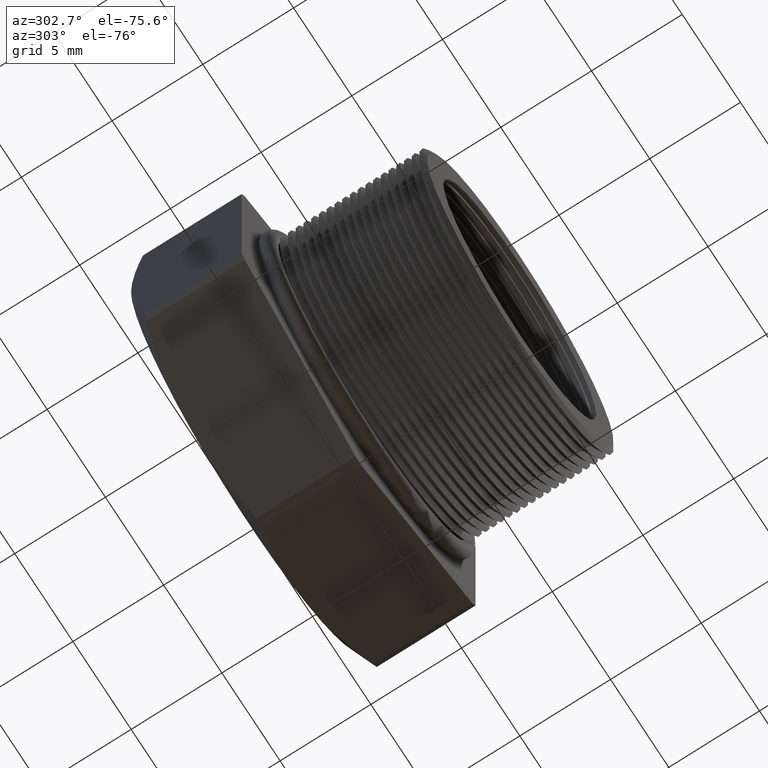
[diagram: clean part render]
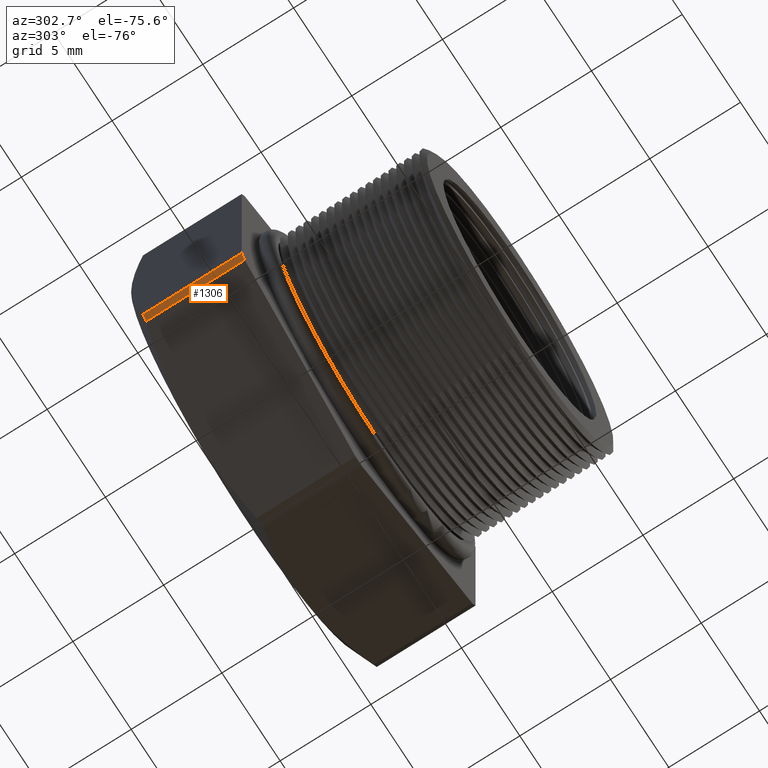
[diagram: same view with one face highlighted and labeled with its STEP entity id]
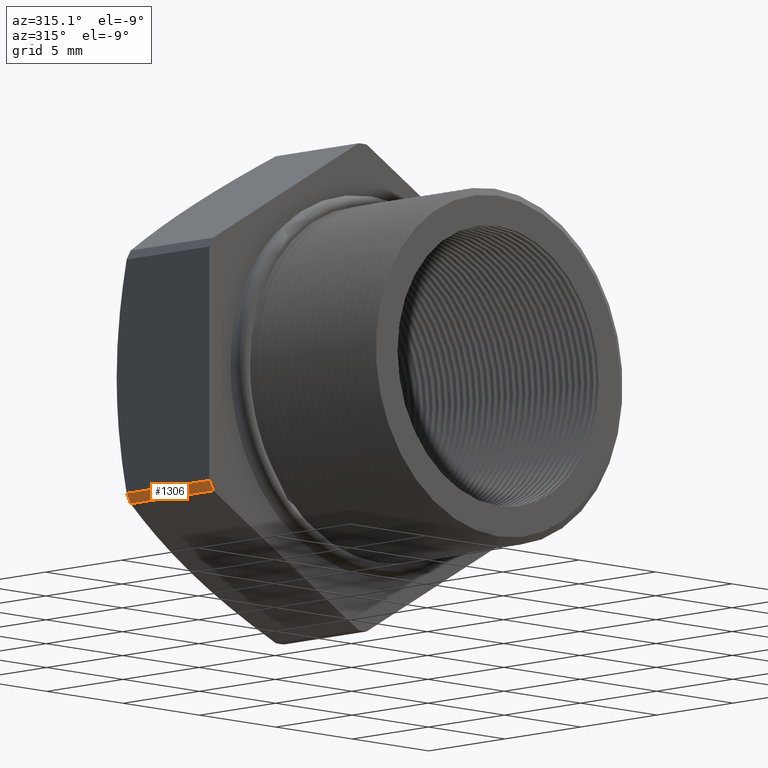
[diagram: same view with one face highlighted and labeled with its STEP entity id]
A machine part, auxiliary view. The second image highlights one B-rep face of the part: STEP entity #1306.
A second angle (auxiliary view) of the same face is appended — the face is thin or edge-on in the first view.
In plain terms, the highlighted cylindrical surface (partial cylindrical patch) has radius 11.4376 mm, axis along (-0, -1, -0).
Its self-contained STEP definition (entity closure, byte-faithful):
#1306 = ADVANCED_FACE ( 'NONE', ( #5067 ), #5066, .T. ) ;
#1307 = EDGE_LOOP ( 'NONE', ( #1364, #1368, #1371, #1374 ) ) ;
#1364 = ORIENTED_EDGE ( 'NONE', *, *, #1365, .T. ) ;
#1365 = EDGE_CURVE ( 'NONE', #1366, #1367, #5207, .T. ) ;
#1366 = VERTEX_POINT ( 'NONE', #5203 ) ;
#1367 = VERTEX_POINT ( 'NONE', #5202 ) ;
#1368 = ORIENTED_EDGE ( 'NONE', *, *, #1369, .T. ) ;
#1369 = EDGE_CURVE ( 'NONE', #1367, #1370, #5201, .T. ) ;
#1370 = VERTEX_POINT ( 'NONE', #5196 ) ;
#1371 = ORIENTED_EDGE ( 'NONE', *, *, #1372, .T. ) ;
#1372 = EDGE_CURVE ( 'NONE', #1370, #1373, #5195, .T. ) ;
#1373 = VERTEX_POINT ( 'NONE', #5191 ) ;
#1374 = ORIENTED_EDGE ( 'NONE', *, *, #1375, .F. ) ;
#1375 = EDGE_CURVE ( 'NONE', #1366, #1373, #5189, .T. ) ;
#5062 = DIRECTION ( 'NONE',  ( 0.0000000000000000000, 0.0000000000000000000, -1.000000000000000000 ) ) ;
#5063 = DIRECTION ( 'NONE',  ( -0.0000000000000000000, -1.000000000000000000, -0.0000000000000000000 ) ) ;
#5064 = CARTESIAN_POINT ( 'NONE',  ( 0.0000000000000000000, 0.0000000000000000000, 0.0000000000000000000 ) ) ;
#5065 = AXIS2_PLACEMENT_3D ( 'NONE', #5064, #5063, #5062 ) ;
#5066 = CYLINDRICAL_SURFACE ( 'NONE', #5065, 0.4502999999999999800 ) ;
#5067 = FACE_OUTER_BOUND ( 'NONE', #1307, .T. ) ;
#5185 = DIRECTION ( 'NONE',  ( 0.0000000000000000000, 0.0000000000000000000, -1.000000000000000000 ) ) ;
#5186 = DIRECTION ( 'NONE',  ( -0.0000000000000000000, -1.000000000000000000, -0.0000000000000000000 ) ) ;
#5187 = CARTESIAN_POINT ( 'NONE',  ( 0.0000000000000000000, 0.1675548905829479500, 0.0000000000000000000 ) ) ;
#5188 = AXIS2_PLACEMENT_3D ( 'NONE', #5187, #5186, #5185 ) ;
#5189 = CIRCLE ( 'NONE', #5188, 0.4502999999999999800 ) ;
#5191 = CARTESIAN_POINT ( 'NONE',  ( -0.3847399997329630200, 0.1675548905829479500, -0.2339769702459614800 ) ) ;
#5192 = DIRECTION ( 'NONE',  ( -0.0000000000000000000, -1.000000000000000000, -0.0000000000000000000 ) ) ;
#5193 = VECTOR ( 'NONE', #5192, 39.37007874015748100 ) ;
#5194 = CARTESIAN_POINT ( 'NONE',  ( -0.3847399997329630800, 0.0000000000000000000, -0.2339769702459615100 ) ) ;
#5195 = LINE ( 'NONE', #5194, #5193 ) ;
#5196 = CARTESIAN_POINT ( 'NONE',  ( -0.3847399997329630800, 0.3817680770869766900, -0.2339769702459614200 ) ) ;
#5197 = DIRECTION ( 'NONE',  ( 0.0000000000000000000, 0.0000000000000000000, -1.000000000000000000 ) ) ;
#5198 = DIRECTION ( 'NONE',  ( 0.0000000000000000000, -1.000000000000000000, 0.0000000000000000000 ) ) ;
#5199 = CARTESIAN_POINT ( 'NONE',  ( 0.0000000000000000000, 0.3817680770869766300, 0.0000000000000000000 ) ) ;
#5200 = AXIS2_PLACEMENT_3D ( 'NONE', #5199, #5198, #5197 ) ;
#5201 = CIRCLE ( 'NONE', #5200, 0.4502999999999999800 ) ;
#5202 = CARTESIAN_POINT ( 'NONE',  ( -0.3949999999999999600, 0.3817680770869766300, -0.2162061284977833100 ) ) ;
#5203 = CARTESIAN_POINT ( 'NONE',  ( -0.3949999999999999600, 0.1675548905829479500, -0.2162061284977833100 ) ) ;
#5204 = DIRECTION ( 'NONE',  ( 0.0000000000000000000, 1.000000000000000000, 0.0000000000000000000 ) ) ;
#5205 = VECTOR ( 'NONE', #5204, 39.37007874015748100 ) ;
#5206 = CARTESIAN_POINT ( 'NONE',  ( -0.3949999999999999600, 0.0000000000000000000, -0.2162061284977833100 ) ) ;
#5207 = LINE ( 'NONE', #5206, #5205 ) ;